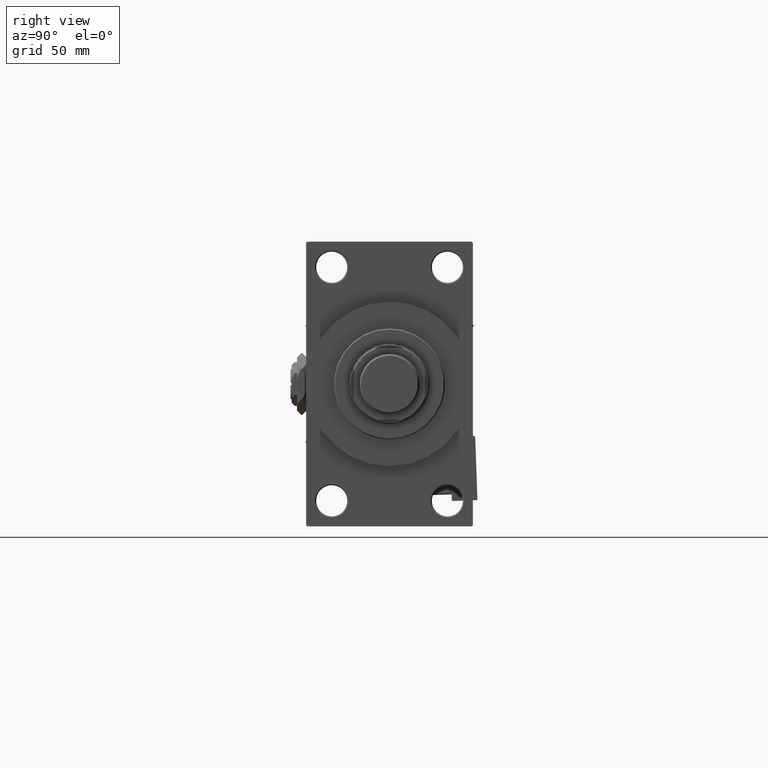
[diagram: clean part render]
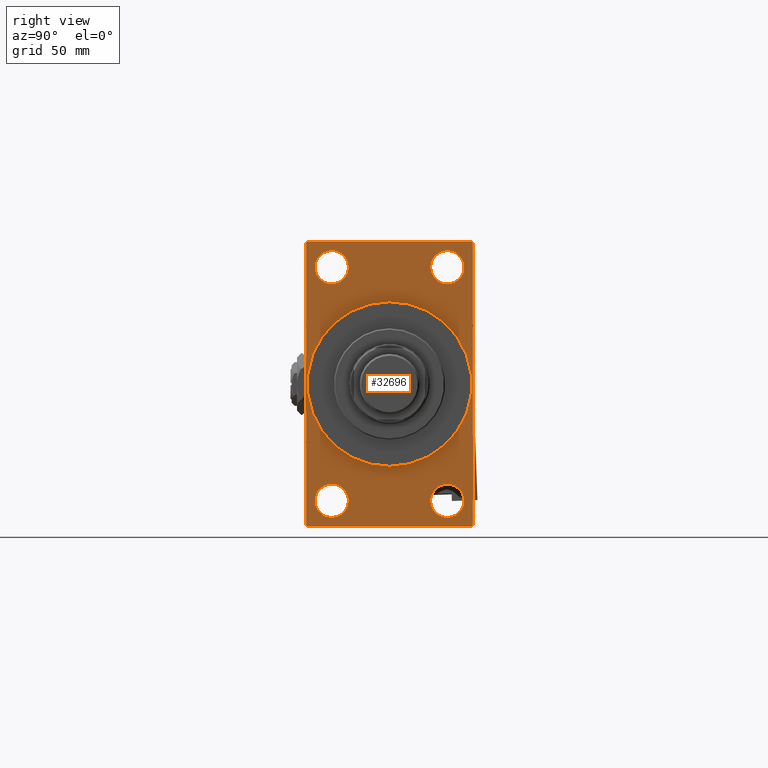
[diagram: same view with one face highlighted and labeled with its STEP entity id]
A machine part, right view. The second image highlights one B-rep face of the part: STEP entity #32696.
In plain terms, the highlighted planar face has unit normal (-1, 0, 0).
Its self-contained STEP definition (entity closure, byte-faithful):
#249 = DIRECTION ( 'NONE',  ( 0.000000000000000000, 0.000000000000000000, -1.000000000000000000 ) ) ;
#350 = CARTESIAN_POINT ( 'NONE',  ( 198.0000000000000000, 0.000000000000000000, 37.00000000000000000 ) ) ;
#1268 = LINE ( 'NONE', #9665, #13693 ) ;
#1685 = EDGE_CURVE ( 'NONE', #23514, #47371, #44603, .T. ) ;
#1875 = VERTEX_POINT ( 'NONE', #35403 ) ;
#2207 = ORIENTED_EDGE ( 'NONE', *, *, #33524, .F. ) ;
#2244 = CIRCLE ( 'NONE', #13991, 7.499999999999978684 ) ;
#2308 = CARTESIAN_POINT ( 'NONE',  ( 198.0000000000000000, 37.50000000000000000, 63.49999999999998579 ) ) ;
#2488 = FACE_BOUND ( 'NONE', #18241, .T. ) ;
#2546 = LINE ( 'NONE', #42997, #6839 ) ;
#3730 = CIRCLE ( 'NONE', #37267, 7.499999999999978684 ) ;
#4345 = DIRECTION ( 'NONE',  ( -1.000000000000000000, 0.000000000000000000, -0.000000000000000000 ) ) ;
#4785 = LINE ( 'NONE', #16104, #8956 ) ;
#5004 = LINE ( 'NONE', #48859, #23912 ) ;
#5100 = VECTOR ( 'NONE', #30780, 1000.000000000000114 ) ;
#5318 = EDGE_LOOP ( 'NONE', ( #7860, #35811, #14082, #51501, #24756, #51402, #33052, #33518 ) ) ;
#5725 = AXIS2_PLACEMENT_3D ( 'NONE', #27680, #15358, #16133 ) ;
#5763 = CARTESIAN_POINT ( 'NONE',  ( 198.0000000000000000, 26.00000000000000000, -59.99999999999997158 ) ) ;
#6110 = CIRCLE ( 'NONE', #12846, 37.00000000000000000 ) ;
#6839 = VECTOR ( 'NONE', #26188, 1000.000000000000114 ) ;
#7814 = EDGE_CURVE ( 'NONE', #8986, #42326, #9425, .T. ) ;
#7860 = ORIENTED_EDGE ( 'NONE', *, *, #27597, .T. ) ;
#8687 = VERTEX_POINT ( 'NONE', #12639 ) ;
#8956 = VECTOR ( 'NONE', #15849, 1000.000000000000000 ) ;
#8986 = VERTEX_POINT ( 'NONE', #16531 ) ;
#9223 = EDGE_LOOP ( 'NONE', ( #37371, #29279 ) ) ;
#9425 = CIRCLE ( 'NONE', #19481, 7.499999999999978684 ) ;
#9665 = CARTESIAN_POINT ( 'NONE',  ( 198.0000000000000000, 37.50000000000000000, 63.99999999999998579 ) ) ;
#10043 = DIRECTION ( 'NONE',  ( 0.000000000000000000, 0.7071067811865573427, -0.7071067811865378028 ) ) ;
#10698 = EDGE_CURVE ( 'NONE', #42326, #8986, #50198, .T. ) ;
#11367 = DIRECTION ( 'NONE',  ( -1.000000000000000000, 0.000000000000000000, -0.000000000000000000 ) ) ;
#11669 = DIRECTION ( 'NONE',  ( 0.000000000000000000, -1.000000000000000000, -1.850371707708594563E-16 ) ) ;
#11786 = CARTESIAN_POINT ( 'NONE',  ( 198.0000000000000000, -37.49999999999999289, -63.50000000000002842 ) ) ;
#12639 = CARTESIAN_POINT ( 'NONE',  ( 198.0000000000000000, -37.49999999999999289, 63.50000000000000000 ) ) ;
#12846 = AXIS2_PLACEMENT_3D ( 'NONE', #24388, #29117, #249 ) ;
#13087 = CARTESIAN_POINT ( 'NONE',  ( 198.0000000000000000, -25.99999999999999645, 45.00000000000002132 ) ) ;
#13693 = VECTOR ( 'NONE', #33312, 1000.000000000000000 ) ;
#13991 = AXIS2_PLACEMENT_3D ( 'NONE', #29968, #45983, #30222 ) ;
#14082 = ORIENTED_EDGE ( 'NONE', *, *, #25419, .F. ) ;
#14422 = ORIENTED_EDGE ( 'NONE', *, *, #7814, .T. ) ;
#14527 = CARTESIAN_POINT ( 'NONE',  ( 198.0000000000000000, -25.99999999999999645, -52.49999999999999289 ) ) ;
#14659 = VERTEX_POINT ( 'NONE', #11786 ) ;
#15358 = DIRECTION ( 'NONE',  ( -1.000000000000000000, 0.000000000000000000, -0.000000000000000000 ) ) ;
#15382 = EDGE_CURVE ( 'NONE', #14659, #22416, #18456, .T. ) ;
#15713 = VERTEX_POINT ( 'NONE', #38276 ) ;
#15849 = DIRECTION ( 'NONE',  ( -0.000000000000000000, -0.7071067811865524577, -0.7071067811865426878 ) ) ;
#16104 = CARTESIAN_POINT ( 'NONE',  ( 198.0000000000000000, -37.49999999999999289, 63.50000000000000000 ) ) ;
#16133 = DIRECTION ( 'NONE',  ( 0.000000000000000000, 0.000000000000000000, 1.000000000000000000 ) ) ;
#16422 = CARTESIAN_POINT ( 'NONE',  ( 198.0000000000000000, 37.49999999999999289, -63.50000000000001421 ) ) ;
#16531 = CARTESIAN_POINT ( 'NONE',  ( 198.0000000000000000, -25.99999999999999645, -45.00000000000001421 ) ) ;
#16541 = DIRECTION ( 'NONE',  ( -1.000000000000000000, 0.000000000000000000, -0.000000000000000000 ) ) ;
#16607 = CARTESIAN_POINT ( 'NONE',  ( 198.0000000000000000, -25.99999999999999645, 59.99999999999997868 ) ) ;
#16709 = AXIS2_PLACEMENT_3D ( 'NONE', #47945, #4345, #20367 ) ;
#17443 = EDGE_CURVE ( 'NONE', #19453, #41154, #2546, .T. ) ;
#18098 = EDGE_CURVE ( 'NONE', #42108, #25246, #50477, .T. ) ;
#18241 = EDGE_LOOP ( 'NONE', ( #48393, #44278 ) ) ;
#18267 = FACE_OUTER_BOUND ( 'NONE', #5318, .T. ) ;
#18335 = CIRCLE ( 'NONE', #5725, 7.499999999999978684 ) ;
#18440 = EDGE_LOOP ( 'NONE', ( #2207, #48892 ) ) ;
#18456 = LINE ( 'NONE', #30259, #46177 ) ;
#18780 = FACE_BOUND ( 'NONE', #18440, .T. ) ;
#19290 = FACE_BOUND ( 'NONE', #36819, .T. ) ;
#19453 = VERTEX_POINT ( 'NONE', #2308 ) ;
#19481 = AXIS2_PLACEMENT_3D ( 'NONE', #26227, #35150, #25967 ) ;
#20367 = DIRECTION ( 'NONE',  ( 0.000000000000000000, 0.000000000000000000, 1.000000000000000000 ) ) ;
#20922 = CIRCLE ( 'NONE', #39244, 7.499999999999978684 ) ;
#22213 = EDGE_CURVE ( 'NONE', #19453, #25246, #1268, .T. ) ;
#22394 = CARTESIAN_POINT ( 'NONE',  ( 198.0000000000000000, 37.49999999999999289, -64.00000000000000000 ) ) ;
#22416 = VERTEX_POINT ( 'NONE', #26062 ) ;
#22701 = DIRECTION ( 'NONE',  ( -0.000000000000000000, 0.000000000000000000, 1.000000000000000000 ) ) ;
#23217 = LINE ( 'NONE', #43446, #27353 ) ;
#23413 = VERTEX_POINT ( 'NONE', #5763 ) ;
#23514 = VERTEX_POINT ( 'NONE', #40394 ) ;
#23912 = VECTOR ( 'NONE', #49368, 1000.000000000000000 ) ;
#24388 = CARTESIAN_POINT ( 'NONE',  ( 198.0000000000000000, 0.000000000000000000, 0.000000000000000000 ) ) ;
#24695 = VECTOR ( 'NONE', #50480, 1000.000000000000000 ) ;
#24756 = ORIENTED_EDGE ( 'NONE', *, *, #22213, .F. ) ;
#25246 = VERTEX_POINT ( 'NONE', #16422 ) ;
#25419 = EDGE_CURVE ( 'NONE', #42108, #22416, #34721, .T. ) ;
#25806 = CARTESIAN_POINT ( 'NONE',  ( 198.0000000000000000, 37.49999999999999289, -63.50000000000001421 ) ) ;
#25967 = DIRECTION ( 'NONE',  ( 0.000000000000000000, 0.000000000000000000, 1.000000000000000000 ) ) ;
#26062 = CARTESIAN_POINT ( 'NONE',  ( 198.0000000000000000, -36.99999999999999289, -64.00000000000001421 ) ) ;
#26188 = DIRECTION ( 'NONE',  ( 0.000000000000000000, -0.7071067811865474617, 0.7071067811865474617 ) ) ;
#26227 = CARTESIAN_POINT ( 'NONE',  ( 198.0000000000000000, -25.99999999999999645, -52.49999999999999289 ) ) ;
#27219 = CIRCLE ( 'NONE', #33069, 7.499999999999978684 ) ;
#27353 = VECTOR ( 'NONE', #11669, 1000.000000000000000 ) ;
#27597 = EDGE_CURVE ( 'NONE', #8687, #14659, #5004, .T. ) ;
#27680 = CARTESIAN_POINT ( 'NONE',  ( 198.0000000000000000, -25.99999999999999645, 52.50000000000000000 ) ) ;
#28671 = AXIS2_PLACEMENT_3D ( 'NONE', #41214, #36232, #40170 ) ;
#29117 = DIRECTION ( 'NONE',  ( 1.000000000000000000, 0.000000000000000000, 0.000000000000000000 ) ) ;
#29279 = ORIENTED_EDGE ( 'NONE', *, *, #49187, .T. ) ;
#29589 = CARTESIAN_POINT ( 'NONE',  ( 198.0000000000000000, -25.99999999999999645, -59.99999999999997158 ) ) ;
#29968 = CARTESIAN_POINT ( 'NONE',  ( 198.0000000000000000, 26.00000000000000000, -52.49999999999999289 ) ) ;
#30222 = DIRECTION ( 'NONE',  ( 0.000000000000000000, 0.000000000000000000, 1.000000000000000000 ) ) ;
#30259 = CARTESIAN_POINT ( 'NONE',  ( 198.0000000000000000, -36.99999999999999289, -64.00000000000001421 ) ) ;
#30691 = CARTESIAN_POINT ( 'NONE',  ( 198.0000000000000000, 26.00000000000000000, 52.49999999999999289 ) ) ;
#30780 = DIRECTION ( 'NONE',  ( -0.000000000000000000, 0.7071067811865376918, 0.7071067811865573427 ) ) ;
#30928 = ORIENTED_EDGE ( 'NONE', *, *, #36231, .T. ) ;
#31104 = FACE_BOUND ( 'NONE', #9223, .T. ) ;
#31755 = AXIS2_PLACEMENT_3D ( 'NONE', #14527, #11367, #39449 ) ;
#31810 = VERTEX_POINT ( 'NONE', #36923 ) ;
#31911 = EDGE_CURVE ( 'NONE', #41154, #31810, #23217, .T. ) ;
#32696 = ADVANCED_FACE ( 'NONE', ( #38989, #19290, #31104, #2488, #18780, #18267 ), #34786, .F. ) ;
#33052 = ORIENTED_EDGE ( 'NONE', *, *, #31911, .T. ) ;
#33068 = CARTESIAN_POINT ( 'NONE',  ( 198.0000000000000000, 37.00000000000000000, 63.99999999999998579 ) ) ;
#33069 = AXIS2_PLACEMENT_3D ( 'NONE', #40154, #16541, #44625 ) ;
#33135 = VERTEX_POINT ( 'NONE', #16607 ) ;
#33312 = DIRECTION ( 'NONE',  ( 0.000000000000000000, -5.421010862427522170E-17, -1.000000000000000000 ) ) ;
#33518 = ORIENTED_EDGE ( 'NONE', *, *, #44366, .T. ) ;
#33524 = EDGE_CURVE ( 'NONE', #47371, #23514, #6110, .T. ) ;
#34004 = ORIENTED_EDGE ( 'NONE', *, *, #51293, .T. ) ;
#34051 = DIRECTION ( 'NONE',  ( 0.000000000000000000, 0.000000000000000000, 1.000000000000000000 ) ) ;
#34526 = DIRECTION ( 'NONE',  ( -1.000000000000000000, 0.000000000000000000, -0.000000000000000000 ) ) ;
#34721 = LINE ( 'NONE', #22394, #24695 ) ;
#34786 = PLANE ( 'NONE',  #42443 ) ;
#35150 = DIRECTION ( 'NONE',  ( -1.000000000000000000, 0.000000000000000000, -0.000000000000000000 ) ) ;
#35403 = CARTESIAN_POINT ( 'NONE',  ( 198.0000000000000000, 26.00000000000000000, -45.00000000000001421 ) ) ;
#35811 = ORIENTED_EDGE ( 'NONE', *, *, #15382, .T. ) ;
#36231 = EDGE_CURVE ( 'NONE', #37197, #33135, #3730, .T. ) ;
#36232 = DIRECTION ( 'NONE',  ( 1.000000000000000000, 0.000000000000000000, 0.000000000000000000 ) ) ;
#36509 = CARTESIAN_POINT ( 'NONE',  ( 198.0000000000000000, 37.00000000000002132, -64.00000000000000000 ) ) ;
#36819 = EDGE_LOOP ( 'NONE', ( #51856, #14422 ) ) ;
#36923 = CARTESIAN_POINT ( 'NONE',  ( 198.0000000000000000, -37.00000000000001421, 63.99999999999997158 ) ) ;
#37197 = VERTEX_POINT ( 'NONE', #13087 ) ;
#37219 = DIRECTION ( 'NONE',  ( -1.000000000000000000, 0.000000000000000000, -0.000000000000000000 ) ) ;
#37267 = AXIS2_PLACEMENT_3D ( 'NONE', #49547, #37219, #34051 ) ;
#37371 = ORIENTED_EDGE ( 'NONE', *, *, #44551, .T. ) ;
#37640 = CIRCLE ( 'NONE', #16709, 7.499999999999978684 ) ;
#37795 = DIRECTION ( 'NONE',  ( -1.000000000000000000, 0.000000000000000000, -0.000000000000000000 ) ) ;
#38276 = CARTESIAN_POINT ( 'NONE',  ( 198.0000000000000000, 26.00000000000000000, 45.00000000000001421 ) ) ;
#38789 = EDGE_CURVE ( 'NONE', #15713, #40804, #27219, .T. ) ;
#38989 = FACE_BOUND ( 'NONE', #44534, .T. ) ;
#39244 = AXIS2_PLACEMENT_3D ( 'NONE', #30691, #37795, #46712 ) ;
#39449 = DIRECTION ( 'NONE',  ( 0.000000000000000000, 0.000000000000000000, 1.000000000000000000 ) ) ;
#40154 = CARTESIAN_POINT ( 'NONE',  ( 198.0000000000000000, 26.00000000000000000, 52.49999999999999289 ) ) ;
#40170 = DIRECTION ( 'NONE',  ( 0.000000000000000000, 0.000000000000000000, -1.000000000000000000 ) ) ;
#40394 = CARTESIAN_POINT ( 'NONE',  ( 198.0000000000000000, 4.531193156845206793E-15, -37.00000000000000000 ) ) ;
#40804 = VERTEX_POINT ( 'NONE', #49400 ) ;
#41154 = VERTEX_POINT ( 'NONE', #33068 ) ;
#41214 = CARTESIAN_POINT ( 'NONE',  ( 198.0000000000000000, 0.000000000000000000, 0.000000000000000000 ) ) ;
#42108 = VERTEX_POINT ( 'NONE', #36509 ) ;
#42326 = VERTEX_POINT ( 'NONE', #29589 ) ;
#42443 = AXIS2_PLACEMENT_3D ( 'NONE', #50803, #34526, #22701 ) ;
#42997 = CARTESIAN_POINT ( 'NONE',  ( 198.0000000000000000, 37.00000000000000000, 63.99999999999998579 ) ) ;
#43446 = CARTESIAN_POINT ( 'NONE',  ( 198.0000000000000000, 37.50000000000000000, 63.99999999999998579 ) ) ;
#44278 = ORIENTED_EDGE ( 'NONE', *, *, #49915, .T. ) ;
#44366 = EDGE_CURVE ( 'NONE', #31810, #8687, #4785, .T. ) ;
#44534 = EDGE_LOOP ( 'NONE', ( #30928, #34004 ) ) ;
#44551 = EDGE_CURVE ( 'NONE', #23413, #1875, #2244, .T. ) ;
#44603 = CIRCLE ( 'NONE', #28671, 37.00000000000000000 ) ;
#44625 = DIRECTION ( 'NONE',  ( 0.000000000000000000, 0.000000000000000000, 1.000000000000000000 ) ) ;
#45983 = DIRECTION ( 'NONE',  ( -1.000000000000000000, 0.000000000000000000, -0.000000000000000000 ) ) ;
#46177 = VECTOR ( 'NONE', #10043, 1000.000000000000000 ) ;
#46712 = DIRECTION ( 'NONE',  ( 0.000000000000000000, 0.000000000000000000, 1.000000000000000000 ) ) ;
#47371 = VERTEX_POINT ( 'NONE', #350 ) ;
#47945 = CARTESIAN_POINT ( 'NONE',  ( 198.0000000000000000, 26.00000000000000000, -52.49999999999999289 ) ) ;
#48393 = ORIENTED_EDGE ( 'NONE', *, *, #38789, .T. ) ;
#48859 = CARTESIAN_POINT ( 'NONE',  ( 198.0000000000000000, -37.49999999999999289, 63.99999999999997158 ) ) ;
#48892 = ORIENTED_EDGE ( 'NONE', *, *, #1685, .F. ) ;
#49187 = EDGE_CURVE ( 'NONE', #1875, #23413, #37640, .T. ) ;
#49368 = DIRECTION ( 'NONE',  ( 0.000000000000000000, 0.000000000000000000, -1.000000000000000000 ) ) ;
#49400 = CARTESIAN_POINT ( 'NONE',  ( 198.0000000000000000, 26.00000000000000000, 59.99999999999997158 ) ) ;
#49547 = CARTESIAN_POINT ( 'NONE',  ( 198.0000000000000000, -25.99999999999999645, 52.50000000000000000 ) ) ;
#49915 = EDGE_CURVE ( 'NONE', #40804, #15713, #20922, .T. ) ;
#50198 = CIRCLE ( 'NONE', #31755, 7.499999999999978684 ) ;
#50477 = LINE ( 'NONE', #25806, #5100 ) ;
#50480 = DIRECTION ( 'NONE',  ( 0.000000000000000000, -1.000000000000000000, -1.850371707708594563E-16 ) ) ;
#50803 = CARTESIAN_POINT ( 'NONE',  ( 198.0000000000000000, 0.000000000000000000, 0.000000000000000000 ) ) ;
#51293 = EDGE_CURVE ( 'NONE', #33135, #37197, #18335, .T. ) ;
#51402 = ORIENTED_EDGE ( 'NONE', *, *, #17443, .T. ) ;
#51501 = ORIENTED_EDGE ( 'NONE', *, *, #18098, .T. ) ;
#51856 = ORIENTED_EDGE ( 'NONE', *, *, #10698, .T. ) ;